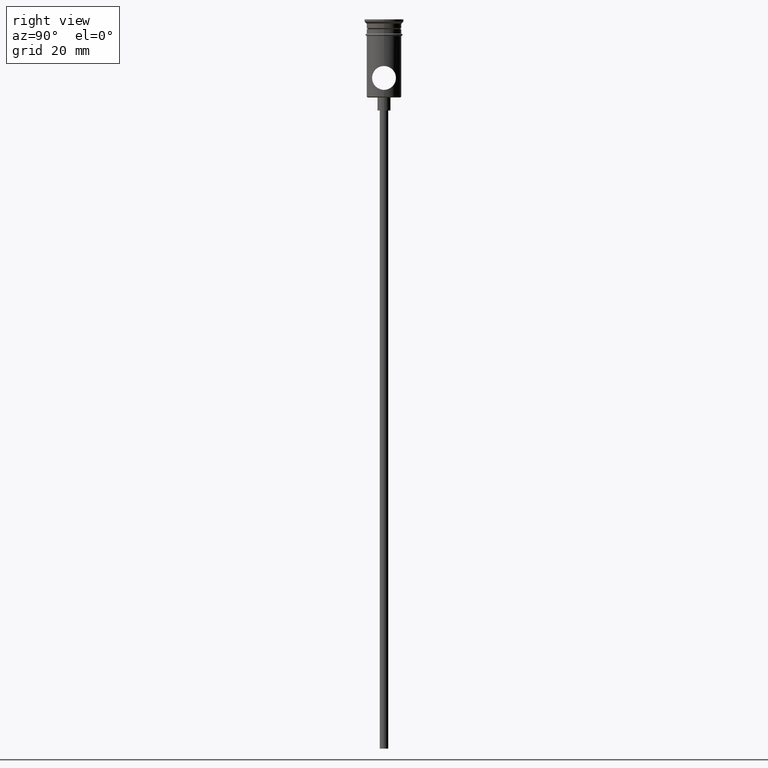
[diagram: clean part render]
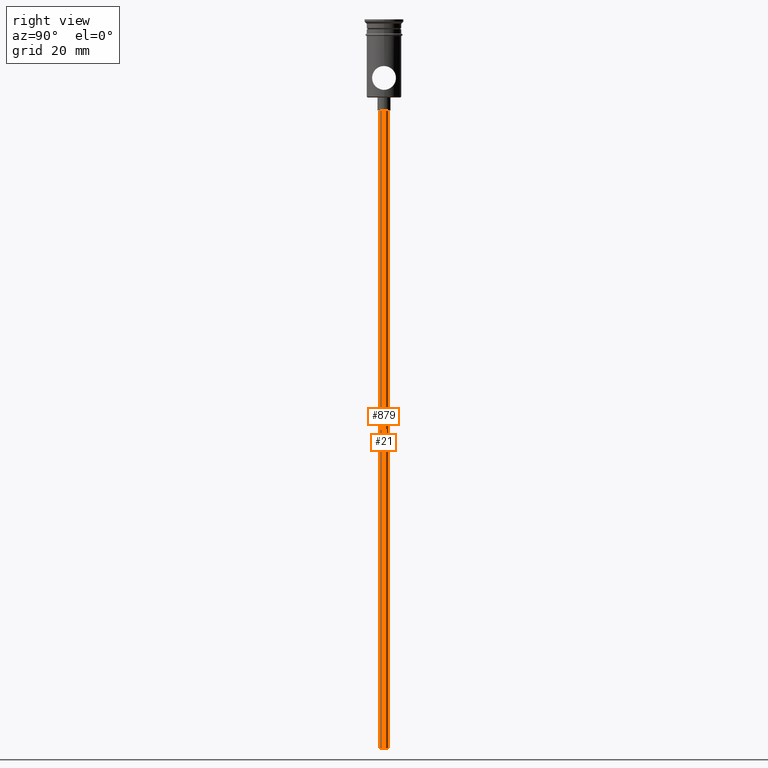
[diagram: same view with one multi-face feature highlighted, each face labeled with its STEP entity id]
A machine part, right view. The highlighted faces form ONE feature: a constant-radius fillet chain: 2 tangent blend faces with common blend radius 1 mm. The faces share edges in the B-rep.
Their STEP definitions:
[1] entity #21 (Cylinder):
#21 = ADVANCED_FACE ( 'NONE', ( #1254 ), #701, .T. ) ;
#28 = ORIENTED_EDGE ( 'NONE', *, *, #172, .T. ) ;
#31 = AXIS2_PLACEMENT_3D ( 'NONE', #1061, #317, #637 ) ;
#42 = LINE ( 'NONE', #485, #353 ) ;
#84 = CARTESIAN_POINT ( 'NONE',  ( -0.9999999999999997780, 1.224646799147352961E-16, -20.99999999999999645 ) ) ;
#87 = DIRECTION ( 'NONE',  ( 1.000000000000000000, 0.000000000000000000, 0.000000000000000000 ) ) ;
#104 = AXIS2_PLACEMENT_3D ( 'NONE', #1179, #431, #87 ) ;
#134 = LINE ( 'NONE', #565, #802 ) ;
#172 = EDGE_CURVE ( 'NONE', #1129, #1117, #357, .T. ) ;
#229 = DIRECTION ( 'NONE',  ( 0.000000000000000000, 0.000000000000000000, -1.000000000000000000 ) ) ;
#239 = CARTESIAN_POINT ( 'NONE',  ( -0.9999999999999997780, 1.224646799147352961E-16, -167.9999999999999716 ) ) ;
#254 = DIRECTION ( 'NONE',  ( -0.000000000000000000, -0.000000000000000000, 1.000000000000000000 ) ) ;
#275 = ORIENTED_EDGE ( 'NONE', *, *, #1118, .F. ) ;
#317 = DIRECTION ( 'NONE',  ( 0.000000000000000000, 0.000000000000000000, -1.000000000000000000 ) ) ;
#339 = DIRECTION ( 'NONE',  ( -1.000000000000000000, 0.000000000000000000, 0.000000000000000000 ) ) ;
#353 = VECTOR ( 'NONE', #819, 1000.000000000000000 ) ;
#357 = CIRCLE ( 'NONE', #1148, 0.9999999999999997780 ) ;
#431 = DIRECTION ( 'NONE',  ( -0.000000000000000000, -0.000000000000000000, 1.000000000000000000 ) ) ;
#485 = CARTESIAN_POINT ( 'NONE',  ( 0.9999999999999997780, 0.000000000000000000, -167.9999999999999716 ) ) ;
#489 = ORIENTED_EDGE ( 'NONE', *, *, #1012, .T. ) ;
#525 = CARTESIAN_POINT ( 'NONE',  ( 0.9999999999999997780, 0.000000000000000000, -20.99999999999999645 ) ) ;
#565 = CARTESIAN_POINT ( 'NONE',  ( -0.9999999999999997780, 1.224646799147352961E-16, -167.9999999999999716 ) ) ;
#604 = ORIENTED_EDGE ( 'NONE', *, *, #1070, .F. ) ;
#637 = DIRECTION ( 'NONE',  ( -1.000000000000000000, 0.000000000000000000, 0.000000000000000000 ) ) ;
#652 = EDGE_LOOP ( 'NONE', ( #275, #489, #28, #604 ) ) ;
#686 = CARTESIAN_POINT ( 'NONE',  ( 0.9999999999999997780, 0.000000000000000000, -167.9999999999999716 ) ) ;
#701 = CYLINDRICAL_SURFACE ( 'NONE', #104, 0.9999999999999997780 ) ;
#702 = CIRCLE ( 'NONE', #31, 0.9999999999999997780 ) ;
#802 = VECTOR ( 'NONE', #254, 1000.000000000000000 ) ;
#819 = DIRECTION ( 'NONE',  ( -0.000000000000000000, -0.000000000000000000, 1.000000000000000000 ) ) ;
#972 = VERTEX_POINT ( 'NONE', #239 ) ;
#1012 = EDGE_CURVE ( 'NONE', #972, #1129, #134, .T. ) ;
#1061 = CARTESIAN_POINT ( 'NONE',  ( 0.000000000000000000, 0.000000000000000000, -167.9999999999999716 ) ) ;
#1070 = EDGE_CURVE ( 'NONE', #1382, #1117, #42, .T. ) ;
#1117 = VERTEX_POINT ( 'NONE', #525 ) ;
#1118 = EDGE_CURVE ( 'NONE', #972, #1382, #702, .T. ) ;
#1129 = VERTEX_POINT ( 'NONE', #84 ) ;
#1148 = AXIS2_PLACEMENT_3D ( 'NONE', #1210, #229, #339 ) ;
#1179 = CARTESIAN_POINT ( 'NONE',  ( 0.000000000000000000, 0.000000000000000000, -167.9999999999999716 ) ) ;
#1210 = CARTESIAN_POINT ( 'NONE',  ( 0.000000000000000000, 0.000000000000000000, -20.99999999999999645 ) ) ;
#1254 = FACE_OUTER_BOUND ( 'NONE', #652, .T. ) ;
#1382 = VERTEX_POINT ( 'NONE', #686 ) ;
[2] entity #879 (Cylinder):
#16 = DIRECTION ( 'NONE',  ( 0.000000000000000000, 0.000000000000000000, -1.000000000000000000 ) ) ;
#42 = LINE ( 'NONE', #485, #353 ) ;
#84 = CARTESIAN_POINT ( 'NONE',  ( -0.9999999999999997780, 1.224646799147352961E-16, -20.99999999999999645 ) ) ;
#108 = DIRECTION ( 'NONE',  ( 1.000000000000000000, 0.000000000000000000, 0.000000000000000000 ) ) ;
#134 = LINE ( 'NONE', #565, #802 ) ;
#135 = CARTESIAN_POINT ( 'NONE',  ( 0.000000000000000000, 0.000000000000000000, -20.99999999999999645 ) ) ;
#209 = DIRECTION ( 'NONE',  ( -0.000000000000000000, -0.000000000000000000, 1.000000000000000000 ) ) ;
#223 = ORIENTED_EDGE ( 'NONE', *, *, #274, .T. ) ;
#239 = CARTESIAN_POINT ( 'NONE',  ( -0.9999999999999997780, 1.224646799147352961E-16, -167.9999999999999716 ) ) ;
#254 = DIRECTION ( 'NONE',  ( -0.000000000000000000, -0.000000000000000000, 1.000000000000000000 ) ) ;
#255 = CIRCLE ( 'NONE', #1282, 0.9999999999999997780 ) ;
#274 = EDGE_CURVE ( 'NONE', #1117, #1129, #939, .T. ) ;
#290 = EDGE_LOOP ( 'NONE', ( #562, #783, #832, #223 ) ) ;
#353 = VECTOR ( 'NONE', #819, 1000.000000000000000 ) ;
#485 = CARTESIAN_POINT ( 'NONE',  ( 0.9999999999999997780, 0.000000000000000000, -167.9999999999999716 ) ) ;
#525 = CARTESIAN_POINT ( 'NONE',  ( 0.9999999999999997780, 0.000000000000000000, -20.99999999999999645 ) ) ;
#549 = FACE_OUTER_BOUND ( 'NONE', #290, .T. ) ;
#558 = CARTESIAN_POINT ( 'NONE',  ( 0.000000000000000000, 0.000000000000000000, -167.9999999999999716 ) ) ;
#562 = ORIENTED_EDGE ( 'NONE', *, *, #1012, .F. ) ;
#565 = CARTESIAN_POINT ( 'NONE',  ( -0.9999999999999997780, 1.224646799147352961E-16, -167.9999999999999716 ) ) ;
#641 = CARTESIAN_POINT ( 'NONE',  ( 0.000000000000000000, 0.000000000000000000, -167.9999999999999716 ) ) ;
#660 = DIRECTION ( 'NONE',  ( 0.000000000000000000, 0.000000000000000000, -1.000000000000000000 ) ) ;
#686 = CARTESIAN_POINT ( 'NONE',  ( 0.9999999999999997780, 0.000000000000000000, -167.9999999999999716 ) ) ;
#744 = DIRECTION ( 'NONE',  ( -1.000000000000000000, 0.000000000000000000, 0.000000000000000000 ) ) ;
#769 = CYLINDRICAL_SURFACE ( 'NONE', #916, 0.9999999999999997780 ) ;
#783 = ORIENTED_EDGE ( 'NONE', *, *, #795, .F. ) ;
#795 = EDGE_CURVE ( 'NONE', #1382, #972, #255, .T. ) ;
#802 = VECTOR ( 'NONE', #254, 1000.000000000000000 ) ;
#819 = DIRECTION ( 'NONE',  ( -0.000000000000000000, -0.000000000000000000, 1.000000000000000000 ) ) ;
#832 = ORIENTED_EDGE ( 'NONE', *, *, #1070, .T. ) ;
#879 = ADVANCED_FACE ( 'NONE', ( #549 ), #769, .T. ) ;
#891 = DIRECTION ( 'NONE',  ( -1.000000000000000000, 0.000000000000000000, 0.000000000000000000 ) ) ;
#916 = AXIS2_PLACEMENT_3D ( 'NONE', #641, #209, #108 ) ;
#939 = CIRCLE ( 'NONE', #1126, 0.9999999999999997780 ) ;
#972 = VERTEX_POINT ( 'NONE', #239 ) ;
#1012 = EDGE_CURVE ( 'NONE', #972, #1129, #134, .T. ) ;
#1070 = EDGE_CURVE ( 'NONE', #1382, #1117, #42, .T. ) ;
#1117 = VERTEX_POINT ( 'NONE', #525 ) ;
#1126 = AXIS2_PLACEMENT_3D ( 'NONE', #135, #16, #891 ) ;
#1129 = VERTEX_POINT ( 'NONE', #84 ) ;
#1282 = AXIS2_PLACEMENT_3D ( 'NONE', #558, #660, #744 ) ;
#1382 = VERTEX_POINT ( 'NONE', #686 ) ;